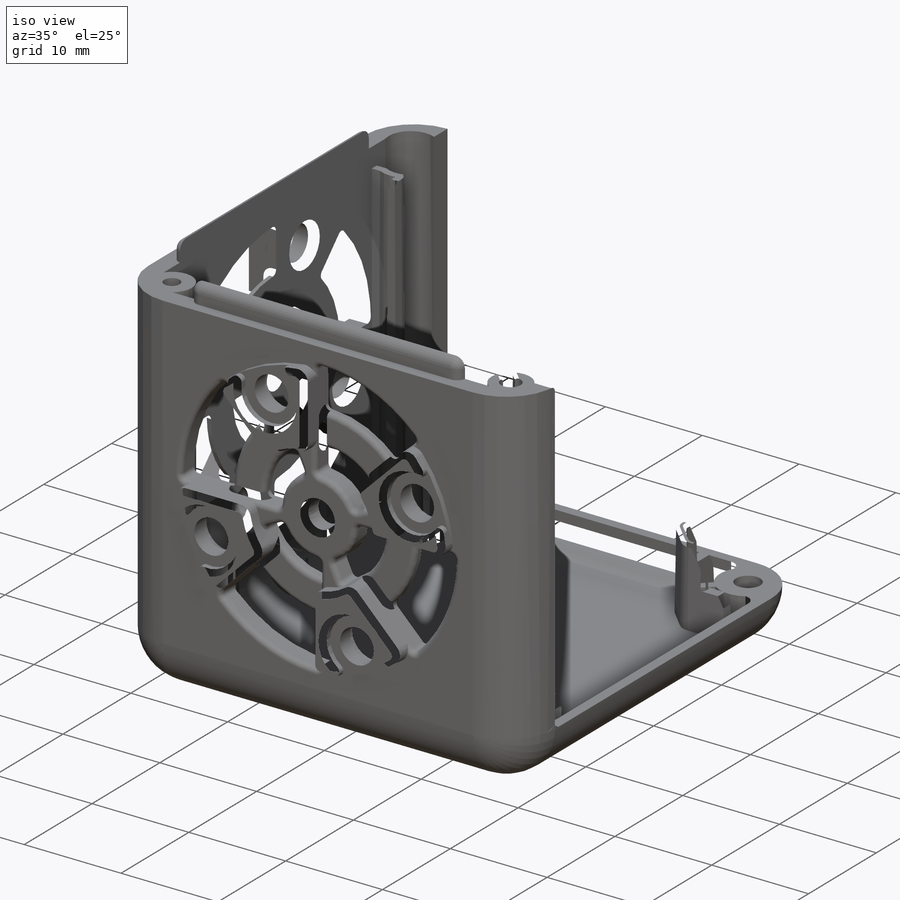
[diagram: iso view]
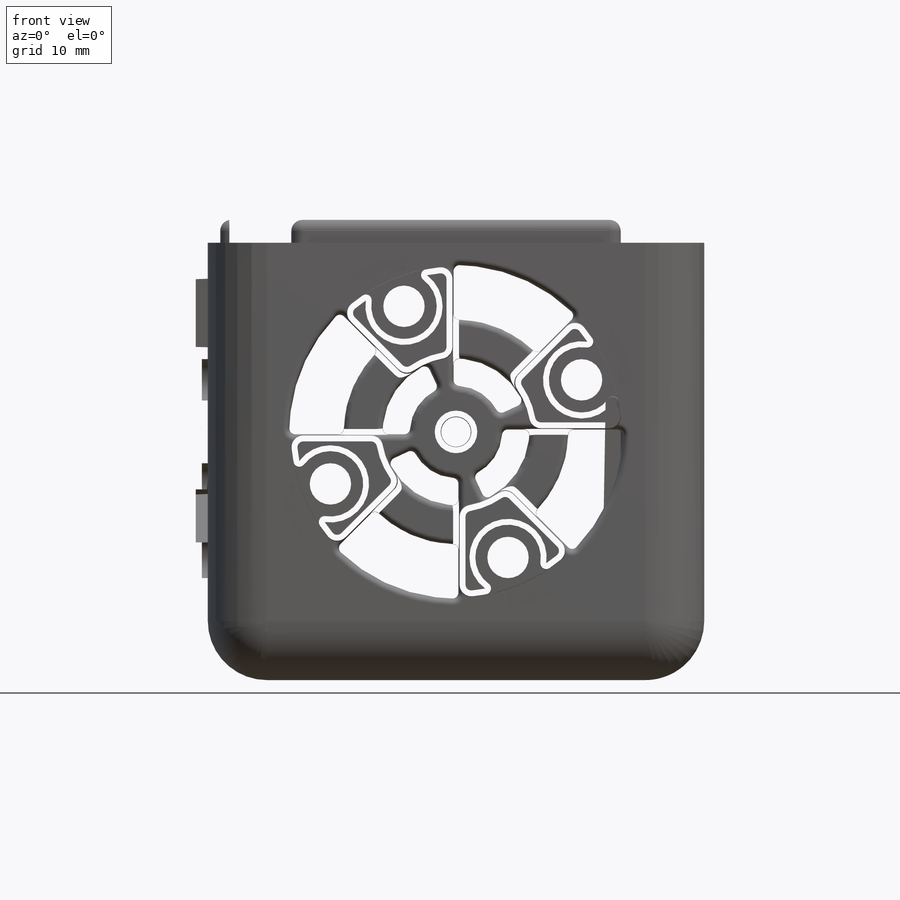
[diagram: front view]
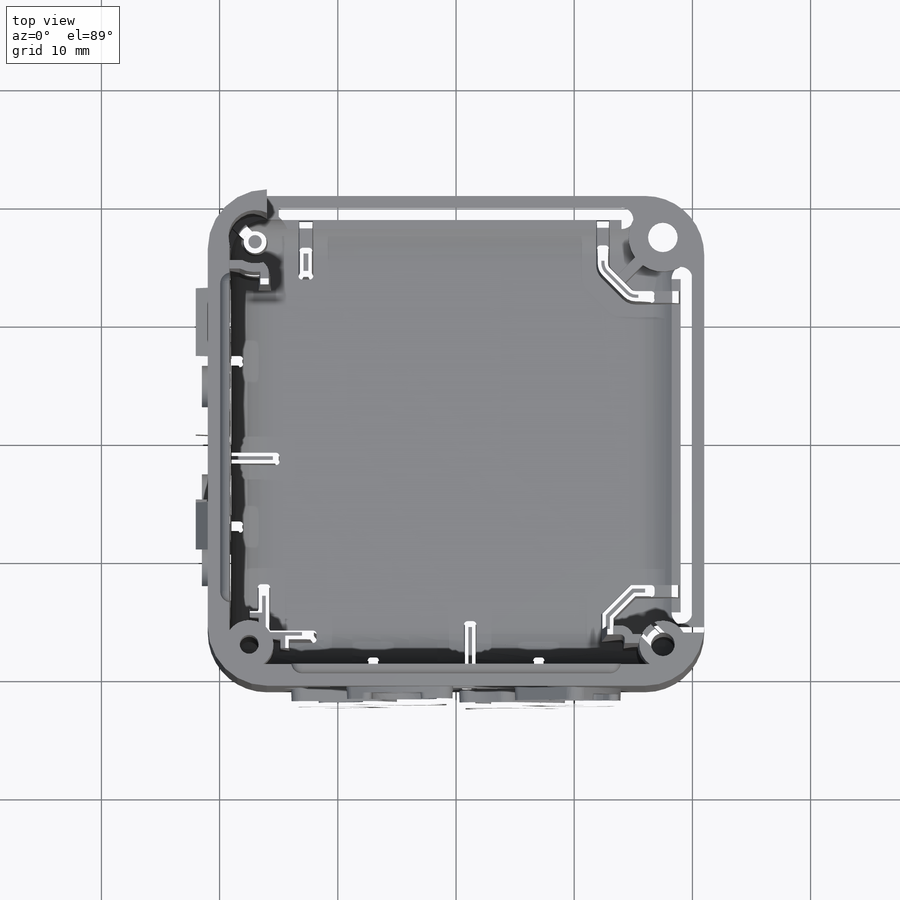
[diagram: top view]
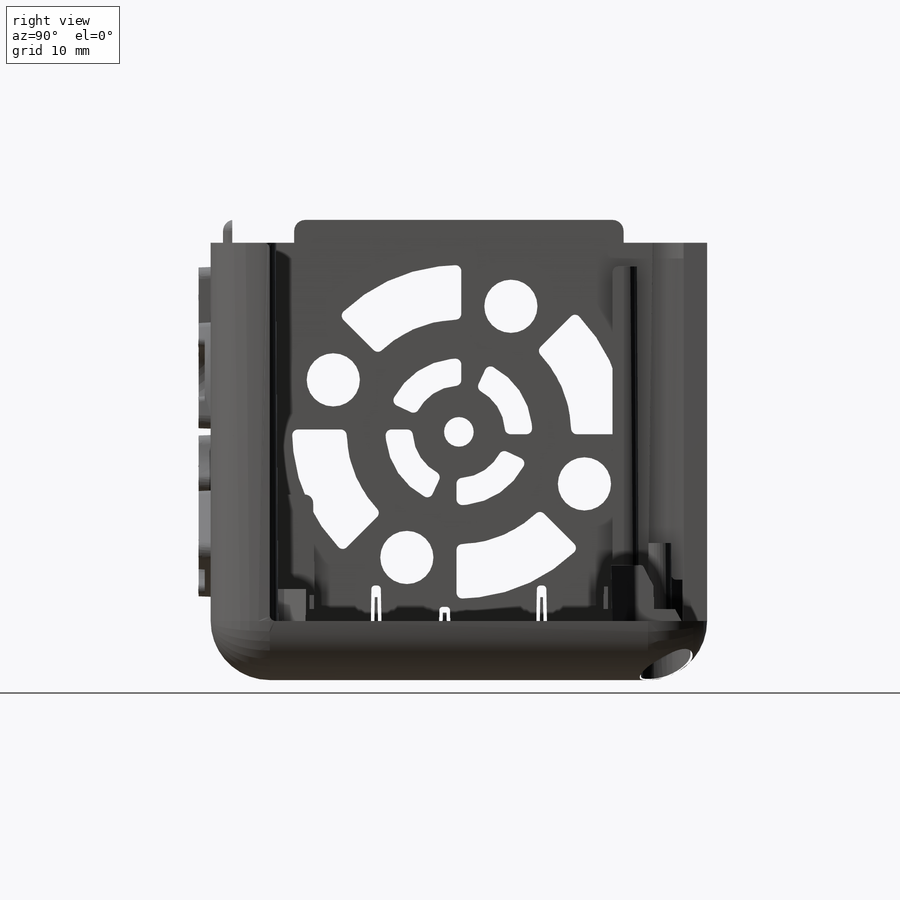
[diagram: right view]
SOLIDWORKS PART (.sldprt)
format: sldprt  version: not decoded by parser v0  size: 3,530,240 bytes
history: native  units: mm
features: sketch x33, cut_extrude x17, extrude x14, fillet x13, chamfer x3, pattern_circular x2, material x1, plane x1 (+22 scaffold rows collapsed; 6 parser-record rows omitted)
feature tree (112):
  scaffold x22  (default folders/planes/origin — collapsed)
  material  "Material <not specified>"
  parser-record x6  (decoder bookkeeping rows leaked as tree rows — omitted from the tree; the rows remain in map.json)
  sketch  "Sketch1"  dims[D1=42.0mm]
  extrude  "Main Boss"  Depth=16mm
  sketch  "Sketch12"  dims[D2=5.8mm D1=38.0mm D3=3.5mm D4=15.0mm]
  cut_extrude  "Main Cavity"  Depth=19mm
  sketch  "Sketch13"  dims[D1=5.0mm D2=5.0mm]
  cut_extrude  "Open Half"  Depth=16mm
  sketch  "Sketch16"  dims[D1=1.05mm D2=7.05mm D3=27.9mm]
  extrude  "Boss-Extrude1"  Depth=1.95mm
  fillet  "InsideFillet"  Radius=3mm
  fillet  "OutsideFillet"  Radius=5mm
  fillet  "Fillet12"  Radius=0.95mm
  sketch  "Sketch14"  dims[c1.D1=~32.021405mm c2.D1=~179.591191deg c3.D1=~32.021405mm c4.D1=0.3deg c4.D2=2.0mm c5.D1=~34.015946mm c6.D1=~0.304557deg c6.D3=1.5mm]
  cut_extrude  "HackDraft1"  Depth=16mm
  sketch  "Sketch15"  dims[c1.D1=~32.062077mm c2.D1=0.3deg c3.D1=~34.152237mm c4.D1=0.3deg c4.D2=1.5mm c4.D3=2.0mm]
  cut_extrude  "HackDraft2"  Depth=18mm
  sketch  "Sketch6"  dims[c1.D9=3.0mm c1.D1=30.2mm c1.D2=1.0mm c1.D3=15.0mm c1.D4=30.0mm c1.D5=15.0mm c1.D6=1.0mm c1.D7=4.0mm c1.D8=~16.944222mm c2.D8=45.0deg c2.D2=1.0mm c2.D6=1.0mm c2.D7=4.0mm c2.D10=3.0mm c3.D2=1.0mm c3.D6=4.0mm c3.D7=1.0mm c4.D2=1.0mm c4.D3=4.0mm]
  cut_extrude  "Tab Slots"  Depth=2mm
  sketch  "Sketch4"  dims[D1=2.5mm]
  cut_extrude  "Screw Hole"  [1 undecoded]
  sketch  "Sketch5"  dims[D1=4.2mm]
  cut_extrude  "Screw Countersink"  Depth=5mm
  sketch  "Sketch7"  dims[c1.D1=1.0mm c1.D2=2.25mm c1.D3=~3.524436mm c2.D3=45.0deg]
  extrude  "Screw Hole Rib"  Depth=3mm
  sketch  "Sketch8"  dims[c1.D1=0.905mm c1.D2=4.0mm c1.D3=1.2mm c1.D4=1.2mm c2.D2=15.0mm]
  extrude  "Board Ribs"  Depth=4.2mm
  sketch  "Sketch9"  dims[c1.D1=1.0mm c1.D2=12.2mm c1.D3=14.1mm c1.D4=4.8mm c1.D5=~3.895038mm c2.D5=45.0deg c2.D6=1.0mm c3.D5=~3.534116mm c4.D5=45.0deg c4.D6=12.0mm c4.D7=18.9mm]
  extrude  "Up 7"  Depth=7mm
  sketch  "Sketch18"  dims[c1.D3=1.0mm c1.D1=19.25mm c1.D2=12.43mm c2.D3=0.5mm c2.D1=19.25mm c3.D1=8.0mm c3.D5=1.0mm c3.D6=1.0mm c3.D7=5.0mm]
  sketch  "Sketch19"  dims[c1.D1=12.45mm c1.D2=12.85mm c1.D3=19.4mm c2.D1=6.0mm c2.D5=1.0mm c2.D6=1.0mm c2.D7=5.0mm]
  sketch  "Sketch11"  dims[D1=2.5mm D2=2.1mm]
  cut_extrude  "Ednge Knicks"  Depth=4mm
  sketch  "Sketch20"  dims[c1.D1=4.1mm c1.D2=1.6mm c1.D4=4.0mm c1.D5=2.0mm c2.D4=2.0mm c2.D3=3.5mm]
  extrude  "Corner Pillars"  [1 undecoded]
  sketch  "Sketch21"  dims[D1=4.5mm D2=4.0mm]
  cut_extrude  "Right Cutout"  [1 undecoded]
  sketch  "Sketch27"  dims[D2=2.1mm D6=1.25mm D1=1.0mm D3=13.0mm D4=15.2mm D5=15.7mm]
  extrude  "Right Tab Rib"  Depth=2mm
  sketch  "Sketch24"  dims[D5=0.25mm D1=1.0mm D2=16.43mm D3=15.7mm D4=14.15mm]
  extrude  "Left Tall Rib"  Depth=5mm
  sketch  "Sketch22"
  cut_extrude  "Silly Edge Cleanup"  [1 undecoded]
  sketch  "Sketch23"  dims[c1.D1=1.0mm c1.D2=~21.567596mm c2.D2=45.0deg]
  cut_extrude  "Notch"  Depth=2.5mm
  sketch  "Sketch25"  dims[D1=0.3mm]
  extrude  "Silly Corner Cleanup"  Depth=3mm
  sketch  "Sketch28"  dims[c1.D1=2.0mm c1.D2=~4.618778mm c2.D2=45.0deg]
  extrude  "Right Peg"  Depth=10mm
  sketch  "Sketch29"  dims[D1=1.0mm]
  extrude  "Right Peg Support"  Depth=6.5mm
  sketch  "Sketch30"  dims[c1.D1=1.0mm c1.D2=0.8mm c1.D3=15.75mm c1.D4=~15.789674mm c2.D4=45.0deg c2.D5=11.8mm c2.D6=14.1mm c2.D7=0.75mm]
  extrude  "Back Ribs"  Depth=14mm
  sketch  "Sketch26"  dims[D1=1.0mm D2=20.0mm D3=18.0mm D4=6.5mm D5=6.5mm D6=20.0mm D7=6.5mm D8=6.5mm]
  extrude  "Little Tabs"  Depth=6mm
  sketch  "Sketch31"  dims[c1.D4=9.5mm c1.D5=14.1mm c1.D8=3.9mm c1.D9=6.2mm c1.D1=~5.281419mm c2.D1=45.0deg c2.D2=0.2mm c2.D3=~11.569299mm c3.D3=45.0deg c3.D1=0.2mm c3.D6=~11.569299mm c4.D6=65.0deg c4.D7=0.2mm]
  cut_extrude  "Side_Thru"  Depth=18mm
  sketch  "Sketch32"  dims[D2=14.0mm D1=0.2mm]
  extrude  "Key"  Depth=1.5mm
  sketch  "Sketch34"  dims[c1.D1=3.5mm c1.D2=11.5mm c1.D3=~9.414571mm c2.D3=22.5deg c3.D3=~10.624615mm c4.D3=22.5deg]
  cut_extrude  "Mag1"  Depth=2.5mm
  sketch  "Sketch35"  dims[D1=4.5mm]
  cut_extrude  "Mag2"  Depth=2.5mm
  sketch  "Sketch36"  dims[D1=5.5mm]
  cut_extrude  "Mag Relief"  Depth=1mm
  sketch  "Sketch38"
  cut_extrude  "Center Relief"  Depth=1mm
  pattern_circular  "Main Side Pattern"  Count=4 Angle=360deg
  sketch  "Sketch37"  dims[D1=2.5mm]
  cut_extrude  "Center Hole"  Depth=5mm
  plane  "Draft Plane"  Offset=19mm
  fillet  "100-2"  Radius=1mm
  fillet  "050-2"  Radius=0.5mm
  fillet  "050-3"  Radius=0.5mm
  fillet  "050-4"  Radius=0.5mm
  pattern_circular  "Side Rotate"  Count=4 Angle=360deg
  fillet  "Random FIllet Cleanup"  Radius=0.5mm
  chamfer  "Chamfer1"  Distance=1mm
  chamfer  "Chamfer3"  Distance=0.4mm Angle=45deg
  chamfer  "Chamfer2"  Distance=1mm
  fillet  "100"  Radius=1mm
  fillet  "080"  Radius=0.8mm
  fillet  "050"  Radius=0.5mm
  fillet  "030"  Radius=0.3mm
  fillet  "010"  Radius=0.1mm
decode coverage: 76 of 82 modeling features carry decoded parameters
note: ~ marks probable driven/reference dimensions
note: 4 parameter values undecoded
summary: no parameter record found for 4 features
note: suppression state not decoded; provenance and decode notes live in map.json
